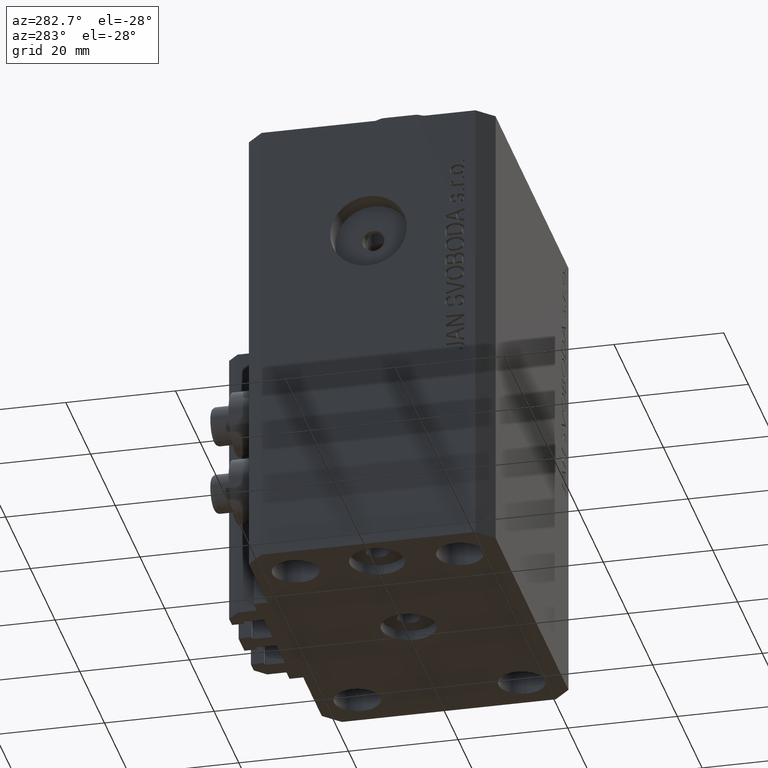
[diagram: clean part render]
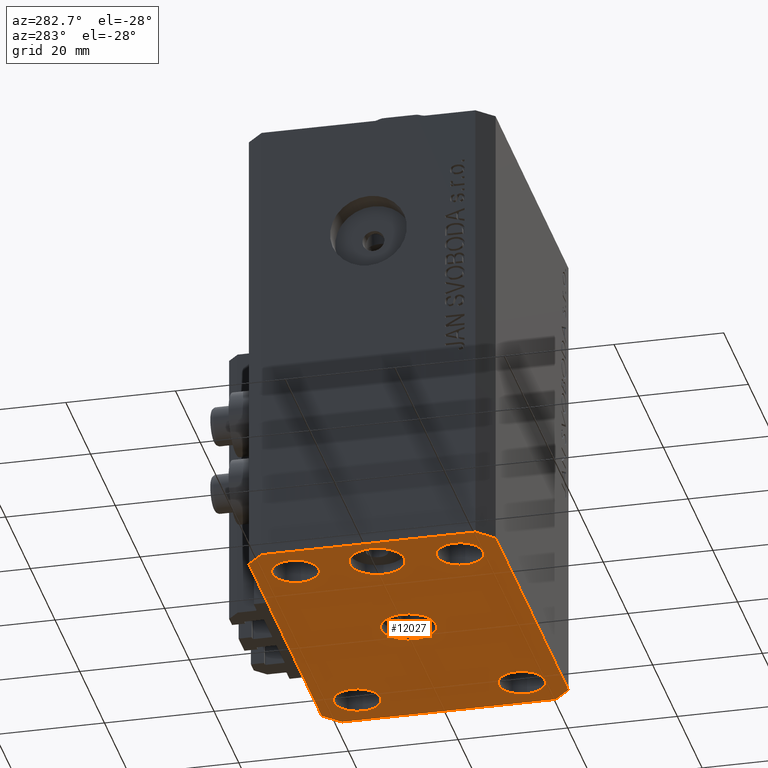
[diagram: same view with one face highlighted and labeled with its STEP entity id]
A machine part, auxiliary view. The second image highlights one B-rep face of the part: STEP entity #12027.
In plain terms, the highlighted planar face has unit normal (0, 0, 1).
Its self-contained STEP definition (entity closure, byte-faithful):
#341 = CARTESIAN_POINT ( 'NONE',  ( -29.49999999999650413, 22.49999999999949907, -85.00000000000000000 ) ) ;
#345 = EDGE_CURVE ( 'NONE', #33327, #45647, #8659, .T. ) ;
#419 = CIRCLE ( 'NONE', #28032, 4.249999999976314058 ) ;
#1073 = AXIS2_PLACEMENT_3D ( 'NONE', #42943, #10790, #24974 ) ;
#1278 = DIRECTION ( 'NONE',  ( -0.7071067811865344721, 0.7071067811865606734, 0.000000000000000000 ) ) ;
#1942 = CARTESIAN_POINT ( 'NONE',  ( -29.49999999999650413, -22.49999999999949907, -85.00000000000000000 ) ) ;
#2022 = DIRECTION ( 'NONE',  ( 1.000000000000000000, 0.000000000000000000, -0.000000000000000000 ) ) ;
#2252 = DIRECTION ( 'NONE',  ( -1.000000000000000000, 0.000000000000000000, 0.000000000000000000 ) ) ;
#2623 = EDGE_CURVE ( 'NONE', #20014, #9108, #19312, .T. ) ;
#2725 = FACE_BOUND ( 'NONE', #45036, .T. ) ;
#3375 = CIRCLE ( 'NONE', #1073, 4.249999999976314058 ) ;
#3881 = VERTEX_POINT ( 'NONE', #4080 ) ;
#4080 = CARTESIAN_POINT ( 'NONE',  ( -20.74999999995962341, -15.00000000000000355, -85.00000000000000000 ) ) ;
#5485 = DIRECTION ( 'NONE',  ( -1.000000000000000000, -3.528251137580330676E-16, 0.000000000000000000 ) ) ;
#5867 = AXIS2_PLACEMENT_3D ( 'NONE', #35912, #18387, #43115 ) ;
#6018 = CARTESIAN_POINT ( 'NONE',  ( -24.99999999999999289, -15.00000000000000355, -85.00000000000000000 ) ) ;
#6368 = ORIENTED_EDGE ( 'NONE', *, *, #31733, .F. ) ;
#6385 = DIRECTION ( 'NONE',  ( -0.000000000000000000, -0.000000000000000000, -1.000000000000000000 ) ) ;
#6651 = AXIS2_PLACEMENT_3D ( 'NONE', #27353, #27830, #42216 ) ;
#6734 = DIRECTION ( 'NONE',  ( 1.000000000000000000, 0.000000000000000000, 0.000000000000000000 ) ) ;
#7026 = VECTOR ( 'NONE', #33407, 1000.000000000000000 ) ;
#7529 = ORIENTED_EDGE ( 'NONE', *, *, #9908, .F. ) ;
#7571 = EDGE_CURVE ( 'NONE', #45647, #33327, #39220, .T. ) ;
#7883 = EDGE_CURVE ( 'NONE', #22533, #32154, #23948, .T. ) ;
#7950 = VERTEX_POINT ( 'NONE', #7987 ) ;
#7987 = CARTESIAN_POINT ( 'NONE',  ( 32.49999999999702993, 19.49999999999945999, -85.00000000000000000 ) ) ;
#8047 = AXIS2_PLACEMENT_3D ( 'NONE', #6018, #31686, #34582 ) ;
#8184 = CIRCLE ( 'NONE', #6651, 4.249999999957291053 ) ;
#8493 = CARTESIAN_POINT ( 'NONE',  ( 0.000000000000000000, 0.000000000000000000, -85.00000000000000000 ) ) ;
#8499 = ORIENTED_EDGE ( 'NONE', *, *, #47113, .F. ) ;
#8659 = CIRCLE ( 'NONE', #10964, 5.000000000000000000 ) ;
#8909 = LINE ( 'NONE', #1942, #36371 ) ;
#9108 = VERTEX_POINT ( 'NONE', #12011 ) ;
#9586 = ORIENTED_EDGE ( 'NONE', *, *, #38076, .F. ) ;
#9724 = EDGE_CURVE ( 'NONE', #9108, #30467, #37801, .T. ) ;
#9908 = EDGE_CURVE ( 'NONE', #22092, #19883, #25550, .T. ) ;
#10537 = VERTEX_POINT ( 'NONE', #33969 ) ;
#10628 = CARTESIAN_POINT ( 'NONE',  ( -30.49999999999665690, 0.000000000000000000, -85.00000000000000000 ) ) ;
#10662 = AXIS2_PLACEMENT_3D ( 'NONE', #27229, #20985, #2252 ) ;
#10696 = EDGE_LOOP ( 'NONE', ( #46577, #44571 ) ) ;
#10790 = DIRECTION ( 'NONE',  ( -0.000000000000000000, -0.000000000000000000, -1.000000000000000000 ) ) ;
#10802 = EDGE_LOOP ( 'NONE', ( #39052, #46496 ) ) ;
#10830 = ORIENTED_EDGE ( 'NONE', *, *, #39200, .F. ) ;
#10964 = AXIS2_PLACEMENT_3D ( 'NONE', #8493, #14747, #29395 ) ;
#11372 = CARTESIAN_POINT ( 'NONE',  ( 29.24999999995729283, 14.99999999999999289, -85.00000000000000000 ) ) ;
#11923 = CARTESIAN_POINT ( 'NONE',  ( 29.49999999999650413, -22.49999999999949196, -85.00000000000000000 ) ) ;
#12011 = CARTESIAN_POINT ( 'NONE',  ( -32.49999999999650413, 19.49999999999949907, -85.00000000000000000 ) ) ;
#12027 = ADVANCED_FACE ( 'NONE', ( #31063, #27947, #13763, #38728, #35355, #2725, #42327 ), #31290, .F. ) ;
#12097 = ORIENTED_EDGE ( 'NONE', *, *, #2623, .F. ) ;
#12522 = EDGE_CURVE ( 'NONE', #40711, #19560, #8184, .T. ) ;
#12802 = EDGE_LOOP ( 'NONE', ( #30603, #26100 ) ) ;
#12960 = ORIENTED_EDGE ( 'NONE', *, *, #27625, .F. ) ;
#13763 = FACE_BOUND ( 'NONE', #21963, .T. ) ;
#13928 = DIRECTION ( 'NONE',  ( -0.000000000000000000, -0.000000000000000000, -1.000000000000000000 ) ) ;
#14025 = ORIENTED_EDGE ( 'NONE', *, *, #39095, .F. ) ;
#14369 = EDGE_CURVE ( 'NONE', #32154, #22533, #42849, .T. ) ;
#14747 = DIRECTION ( 'NONE',  ( 0.000000000000000000, 0.000000000000000000, -1.000000000000000000 ) ) ;
#15808 = ORIENTED_EDGE ( 'NONE', *, *, #20415, .F. ) ;
#16254 = AXIS2_PLACEMENT_3D ( 'NONE', #24420, #46224, #39017 ) ;
#16584 = CIRCLE ( 'NONE', #5867, 4.250000000040370374 ) ;
#16612 = VERTEX_POINT ( 'NONE', #32271 ) ;
#17104 = CIRCLE ( 'NONE', #20956, 4.250000000021375790 ) ;
#17436 = CARTESIAN_POINT ( 'NONE',  ( 25.00000000000000000, 14.99999999999999289, -85.00000000000000000 ) ) ;
#17642 = CARTESIAN_POINT ( 'NONE',  ( -29.25000000004036593, -15.00000000000000355, -85.00000000000000000 ) ) ;
#17653 = DIRECTION ( 'NONE',  ( 0.7071067811865474617, -0.7071067811865474617, 0.000000000000000000 ) ) ;
#17775 = CARTESIAN_POINT ( 'NONE',  ( -25.00000000000000000, 14.99999999999999645, -85.00000000000000000 ) ) ;
#18072 = VERTEX_POINT ( 'NONE', #34042 ) ;
#18349 = CARTESIAN_POINT ( 'NONE',  ( -32.49999999999650413, -19.49999999999949907, -85.00000000000000000 ) ) ;
#18387 = DIRECTION ( 'NONE',  ( -0.000000000000000000, -0.000000000000000000, -1.000000000000000000 ) ) ;
#19110 = CARTESIAN_POINT ( 'NONE',  ( 24.99999999999999289, -15.00000000000000355, -85.00000000000000000 ) ) ;
#19312 = LINE ( 'NONE', #341, #44728 ) ;
#19495 = CARTESIAN_POINT ( 'NONE',  ( -20.50000000000333955, 6.123233995732674066E-16, -85.00000000000000000 ) ) ;
#19560 = VERTEX_POINT ( 'NONE', #11372 ) ;
#19829 = DIRECTION ( 'NONE',  ( 1.000000000000000000, 0.000000000000000000, 0.000000000000000000 ) ) ;
#19883 = VERTEX_POINT ( 'NONE', #46840 ) ;
#19910 = VERTEX_POINT ( 'NONE', #23070 ) ;
#20014 = VERTEX_POINT ( 'NONE', #27630 ) ;
#20415 = EDGE_CURVE ( 'NONE', #30467, #10537, #25799, .T. ) ;
#20515 = EDGE_CURVE ( 'NONE', #7950, #18072, #34155, .T. ) ;
#20617 = LINE ( 'NONE', #42428, #42512 ) ;
#20956 = AXIS2_PLACEMENT_3D ( 'NONE', #17775, #13928, #6734 ) ;
#20985 = DIRECTION ( 'NONE',  ( 0.000000000000000000, 0.000000000000000000, -1.000000000000000000 ) ) ;
#21475 = CARTESIAN_POINT ( 'NONE',  ( -25.50000000000000000, 0.000000000000000000, -85.00000000000000000 ) ) ;
#21718 = CARTESIAN_POINT ( 'NONE',  ( 29.49999999999650413, -22.49999999999949196, -85.00000000000000000 ) ) ;
#21963 = EDGE_LOOP ( 'NONE', ( #10830, #33672 ) ) ;
#22092 = VERTEX_POINT ( 'NONE', #11923 ) ;
#22393 = LINE ( 'NONE', #37009, #7026 ) ;
#22533 = VERTEX_POINT ( 'NONE', #19495 ) ;
#23070 = CARTESIAN_POINT ( 'NONE',  ( 29.24999999997631051, -15.00000000000000355, -85.00000000000000000 ) ) ;
#23948 = CIRCLE ( 'NONE', #24732, 4.999999999996659561 ) ;
#24420 = CARTESIAN_POINT ( 'NONE',  ( 0.000000000000000000, 0.000000000000000000, -85.00000000000000000 ) ) ;
#24732 = AXIS2_PLACEMENT_3D ( 'NONE', #21475, #47338, #28673 ) ;
#24974 = DIRECTION ( 'NONE',  ( 1.000000000000000000, 0.000000000000000000, 0.000000000000000000 ) ) ;
#25550 = LINE ( 'NONE', #21718, #40811 ) ;
#25690 = EDGE_CURVE ( 'NONE', #19560, #40711, #28454, .T. ) ;
#25799 = LINE ( 'NONE', #18349, #42960 ) ;
#26100 = ORIENTED_EDGE ( 'NONE', *, *, #12522, .F. ) ;
#26724 = CIRCLE ( 'NONE', #27539, 4.250000000021375790 ) ;
#27229 = CARTESIAN_POINT ( 'NONE',  ( -25.50000000000000000, 0.000000000000000000, -85.00000000000000000 ) ) ;
#27353 = CARTESIAN_POINT ( 'NONE',  ( 25.00000000000000000, 14.99999999999999289, -85.00000000000000000 ) ) ;
#27491 = DIRECTION ( 'NONE',  ( 1.000000000000000000, 0.000000000000000000, 0.000000000000000000 ) ) ;
#27539 = AXIS2_PLACEMENT_3D ( 'NONE', #45229, #42347, #27491 ) ;
#27625 = EDGE_CURVE ( 'NONE', #19883, #7950, #22393, .T. ) ;
#27630 = CARTESIAN_POINT ( 'NONE',  ( -29.49999999999650413, 22.49999999999949907, -85.00000000000000000 ) ) ;
#27830 = DIRECTION ( 'NONE',  ( -0.000000000000000000, -0.000000000000000000, -1.000000000000000000 ) ) ;
#27873 = DIRECTION ( 'NONE',  ( 1.000000000000000000, 1.176083712526788232E-16, 0.000000000000000000 ) ) ;
#27947 = FACE_BOUND ( 'NONE', #10802, .T. ) ;
#28032 = AXIS2_PLACEMENT_3D ( 'NONE', #19110, #38052, #19829 ) ;
#28072 = ORIENTED_EDGE ( 'NONE', *, *, #20515, .F. ) ;
#28181 = VERTEX_POINT ( 'NONE', #28487 ) ;
#28440 = EDGE_LOOP ( 'NONE', ( #9586, #32724 ) ) ;
#28454 = CIRCLE ( 'NONE', #40678, 4.249999999957291053 ) ;
#28476 = DIRECTION ( 'NONE',  ( 1.000000000000000000, 0.000000000000000000, 0.000000000000000000 ) ) ;
#28487 = CARTESIAN_POINT ( 'NONE',  ( -20.74999999997862687, 14.99999999999999645, -85.00000000000000000 ) ) ;
#28673 = DIRECTION ( 'NONE',  ( -1.000000000000000000, 0.000000000000000000, 0.000000000000000000 ) ) ;
#29395 = DIRECTION ( 'NONE',  ( -1.000000000000000000, 0.000000000000000000, 0.000000000000000000 ) ) ;
#30335 = DIRECTION ( 'NONE',  ( -0.7071067811865474617, -0.7071067811865474617, 0.000000000000000000 ) ) ;
#30467 = VERTEX_POINT ( 'NONE', #41590 ) ;
#30603 = ORIENTED_EDGE ( 'NONE', *, *, #25690, .F. ) ;
#30802 = CARTESIAN_POINT ( 'NONE',  ( 32.49999999999702993, 19.49999999999945999, -85.00000000000000000 ) ) ;
#31063 = FACE_BOUND ( 'NONE', #10696, .T. ) ;
#31290 = PLANE ( 'NONE',  #37297 ) ;
#31617 = VECTOR ( 'NONE', #41404, 1000.000000000000000 ) ;
#31686 = DIRECTION ( 'NONE',  ( -0.000000000000000000, -0.000000000000000000, -1.000000000000000000 ) ) ;
#31733 = EDGE_CURVE ( 'NONE', #38247, #28181, #17104, .T. ) ;
#31782 = CIRCLE ( 'NONE', #8047, 4.250000000040370374 ) ;
#32154 = VERTEX_POINT ( 'NONE', #10628 ) ;
#32271 = CARTESIAN_POINT ( 'NONE',  ( 20.75000000002367884, -15.00000000000000355, -85.00000000000000000 ) ) ;
#32724 = ORIENTED_EDGE ( 'NONE', *, *, #41331, .F. ) ;
#33314 = CARTESIAN_POINT ( 'NONE',  ( -29.25000000002137668, 14.99999999999999645, -85.00000000000000000 ) ) ;
#33327 = VERTEX_POINT ( 'NONE', #39309 ) ;
#33407 = DIRECTION ( 'NONE',  ( 1.334402673828349134E-14, 1.000000000000000000, 0.000000000000000000 ) ) ;
#33672 = ORIENTED_EDGE ( 'NONE', *, *, #43480, .F. ) ;
#33969 = CARTESIAN_POINT ( 'NONE',  ( -29.49999999999650413, -22.49999999999949907, -85.00000000000000000 ) ) ;
#33979 = DIRECTION ( 'NONE',  ( 0.000000000000000000, 0.000000000000000000, 1.000000000000000000 ) ) ;
#34042 = CARTESIAN_POINT ( 'NONE',  ( 29.49999999999707967, 22.49999999999952038, -85.00000000000000000 ) ) ;
#34073 = CARTESIAN_POINT ( 'NONE',  ( 20.75000000004271072, 14.99999999999999289, -85.00000000000000000 ) ) ;
#34155 = LINE ( 'NONE', #30802, #44503 ) ;
#34582 = DIRECTION ( 'NONE',  ( 1.000000000000000000, 0.000000000000000000, 0.000000000000000000 ) ) ;
#35355 = FACE_BOUND ( 'NONE', #12802, .T. ) ;
#35912 = CARTESIAN_POINT ( 'NONE',  ( -24.99999999999999289, -15.00000000000000355, -85.00000000000000000 ) ) ;
#36371 = VECTOR ( 'NONE', #27873, 1000.000000000000000 ) ;
#36563 = DIRECTION ( 'NONE',  ( 0.7071067811865483499, 0.7071067811865466846, 0.000000000000000000 ) ) ;
#37009 = CARTESIAN_POINT ( 'NONE',  ( 32.49999999999651124, -19.49999999999949196, -85.00000000000000000 ) ) ;
#37290 = ORIENTED_EDGE ( 'NONE', *, *, #39385, .F. ) ;
#37297 = AXIS2_PLACEMENT_3D ( 'NONE', #45925, #33979, #2022 ) ;
#37801 = LINE ( 'NONE', #41890, #31617 ) ;
#38052 = DIRECTION ( 'NONE',  ( -0.000000000000000000, -0.000000000000000000, -1.000000000000000000 ) ) ;
#38076 = EDGE_CURVE ( 'NONE', #19910, #16612, #3375, .T. ) ;
#38247 = VERTEX_POINT ( 'NONE', #33314 ) ;
#38728 = FACE_BOUND ( 'NONE', #28440, .T. ) ;
#38852 = ORIENTED_EDGE ( 'NONE', *, *, #9724, .F. ) ;
#39017 = DIRECTION ( 'NONE',  ( -1.000000000000000000, 0.000000000000000000, 0.000000000000000000 ) ) ;
#39052 = ORIENTED_EDGE ( 'NONE', *, *, #14369, .F. ) ;
#39095 = EDGE_CURVE ( 'NONE', #10537, #22092, #8909, .T. ) ;
#39200 = EDGE_CURVE ( 'NONE', #3881, #44940, #31782, .T. ) ;
#39220 = CIRCLE ( 'NONE', #16254, 5.000000000000000000 ) ;
#39309 = CARTESIAN_POINT ( 'NONE',  ( -5.000000000000000000, 0.000000000000000000, -85.00000000000000000 ) ) ;
#39385 = EDGE_CURVE ( 'NONE', #18072, #20014, #20617, .T. ) ;
#40402 = CARTESIAN_POINT ( 'NONE',  ( 5.000000000000000000, 6.123233995736765296E-16, -85.00000000000000000 ) ) ;
#40678 = AXIS2_PLACEMENT_3D ( 'NONE', #17436, #6385, #28476 ) ;
#40711 = VERTEX_POINT ( 'NONE', #34073 ) ;
#40811 = VECTOR ( 'NONE', #36563, 1000.000000000000000 ) ;
#41331 = EDGE_CURVE ( 'NONE', #16612, #19910, #419, .T. ) ;
#41404 = DIRECTION ( 'NONE',  ( 0.000000000000000000, -1.000000000000000000, 0.000000000000000000 ) ) ;
#41590 = CARTESIAN_POINT ( 'NONE',  ( -32.49999999999650413, -19.49999999999949907, -85.00000000000000000 ) ) ;
#41890 = CARTESIAN_POINT ( 'NONE',  ( -32.49999999999650413, 19.49999999999949907, -85.00000000000000000 ) ) ;
#42216 = DIRECTION ( 'NONE',  ( 1.000000000000000000, 0.000000000000000000, 0.000000000000000000 ) ) ;
#42327 = FACE_OUTER_BOUND ( 'NONE', #46665, .T. ) ;
#42347 = DIRECTION ( 'NONE',  ( -0.000000000000000000, -0.000000000000000000, -1.000000000000000000 ) ) ;
#42428 = CARTESIAN_POINT ( 'NONE',  ( 29.49999999999707967, 22.49999999999952038, -85.00000000000000000 ) ) ;
#42512 = VECTOR ( 'NONE', #5485, 1000.000000000000000 ) ;
#42849 = CIRCLE ( 'NONE', #10662, 4.999999999996659561 ) ;
#42943 = CARTESIAN_POINT ( 'NONE',  ( 24.99999999999999289, -15.00000000000000355, -85.00000000000000000 ) ) ;
#42960 = VECTOR ( 'NONE', #17653, 1000.000000000000114 ) ;
#43115 = DIRECTION ( 'NONE',  ( 1.000000000000000000, 0.000000000000000000, 0.000000000000000000 ) ) ;
#43480 = EDGE_CURVE ( 'NONE', #44940, #3881, #16584, .T. ) ;
#44503 = VECTOR ( 'NONE', #1278, 1000.000000000000000 ) ;
#44571 = ORIENTED_EDGE ( 'NONE', *, *, #7571, .F. ) ;
#44728 = VECTOR ( 'NONE', #30335, 1000.000000000000114 ) ;
#44940 = VERTEX_POINT ( 'NONE', #17642 ) ;
#45036 = EDGE_LOOP ( 'NONE', ( #8499, #6368 ) ) ;
#45229 = CARTESIAN_POINT ( 'NONE',  ( -25.00000000000000000, 14.99999999999999645, -85.00000000000000000 ) ) ;
#45647 = VERTEX_POINT ( 'NONE', #40402 ) ;
#45925 = CARTESIAN_POINT ( 'NONE',  ( 0.000000000000000000, 0.000000000000000000, -85.00000000000000000 ) ) ;
#46224 = DIRECTION ( 'NONE',  ( 0.000000000000000000, 0.000000000000000000, -1.000000000000000000 ) ) ;
#46496 = ORIENTED_EDGE ( 'NONE', *, *, #7883, .F. ) ;
#46577 = ORIENTED_EDGE ( 'NONE', *, *, #345, .F. ) ;
#46665 = EDGE_LOOP ( 'NONE', ( #37290, #28072, #12960, #7529, #14025, #15808, #38852, #12097 ) ) ;
#46840 = CARTESIAN_POINT ( 'NONE',  ( 32.49999999999651124, -19.49999999999949196, -85.00000000000000000 ) ) ;
#47113 = EDGE_CURVE ( 'NONE', #28181, #38247, #26724, .T. ) ;
#47338 = DIRECTION ( 'NONE',  ( 0.000000000000000000, 0.000000000000000000, -1.000000000000000000 ) ) ;